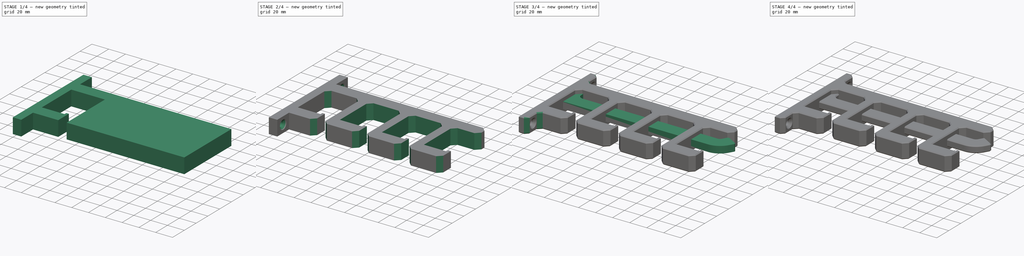
[diagram: build sequence overview — one tinted view per stage of 4, left to right]
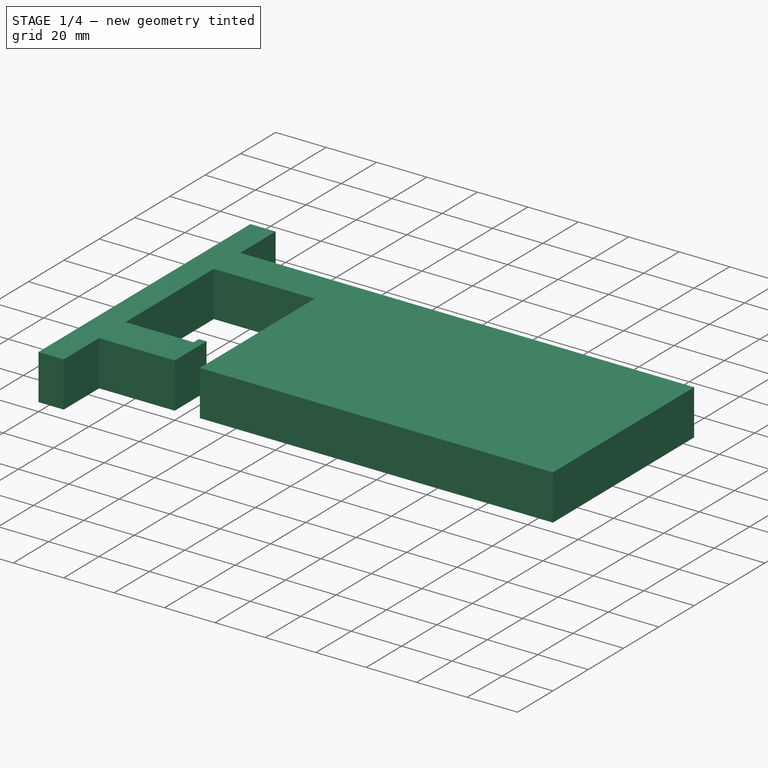
[diagram: stage 1 of 4 — iso view after this stage's code; geometry added in this stage tinted green]
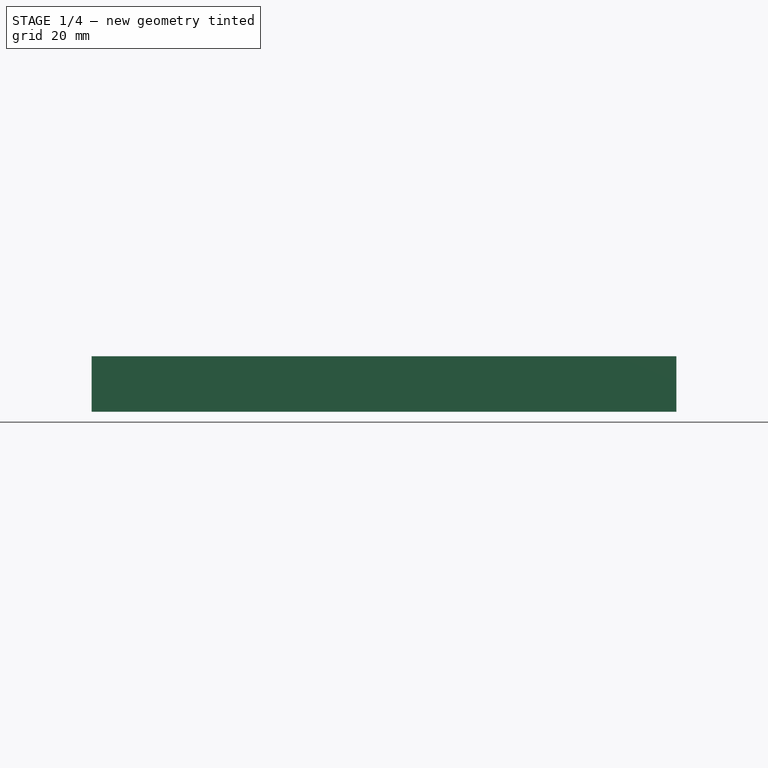
[diagram: stage 1 of 4 — front view after this stage's code; geometry added in this stage tinted green]
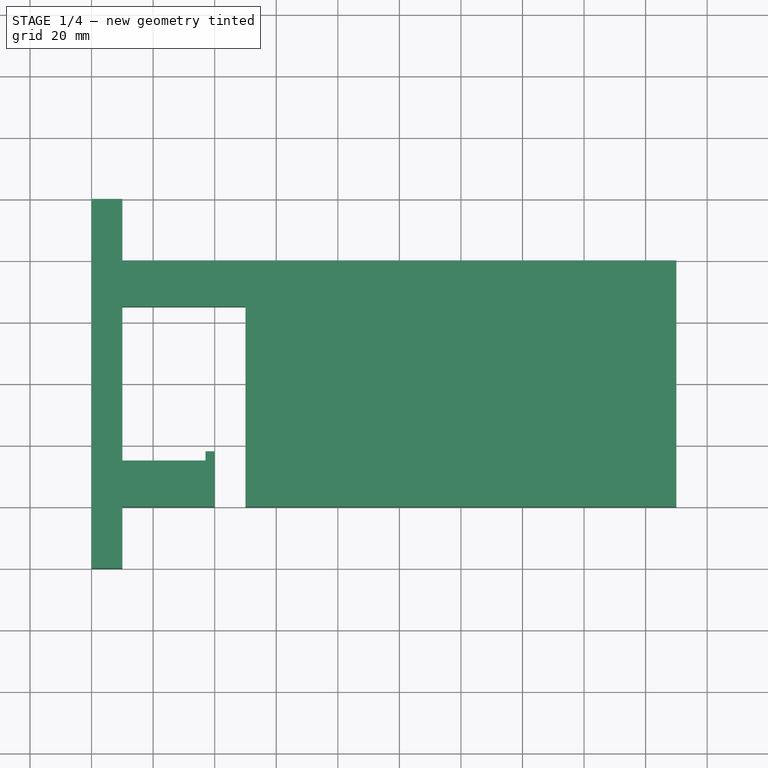
[diagram: stage 1 of 4 — top view after this stage's code; geometry added in this stage tinted green]
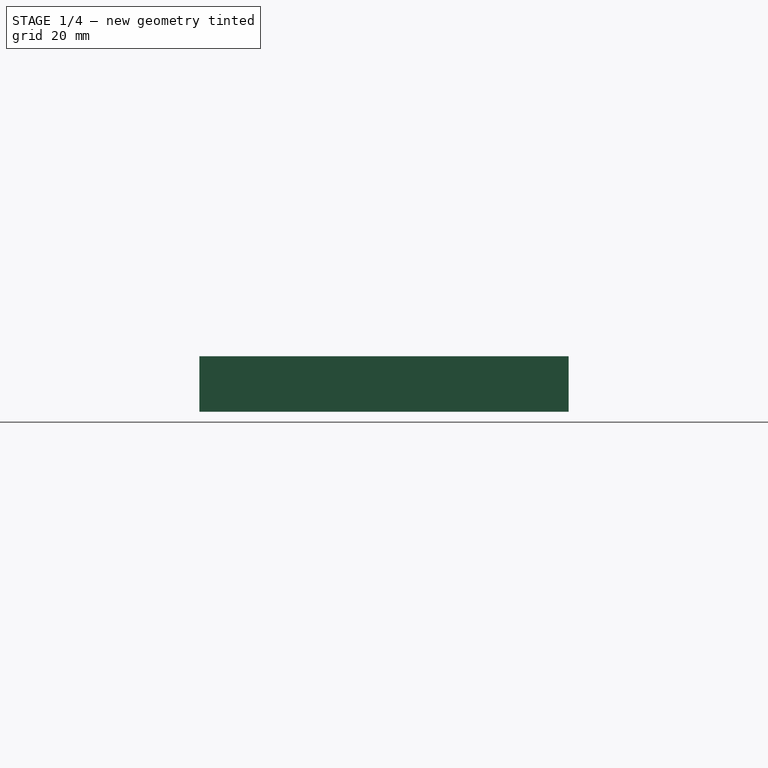
[diagram: stage 1 of 4 — right view after this stage's code; geometry added in this stage tinted green]
FCSTD DOCUMENT  (FreeCAD 0.19R24276 (Git))
Label: cardboard_hanger
License: All rights reserved
LicenseURL: http://en.wikipedia.org/wiki/All_rights_reserved
objects: Sketcher::SketchObject×5, PartDesign::Chamfer×4, PartDesign::Pad×2, PartDesign::Hole×2, PartDesign::Body×2, PartDesign::Pocket×1, PartDesign::LinearPattern×1
note: 26 computed .brp shape members not serialized (recipe doc carries the construction recipe); baked Part::Feature solids carry a one-line shape summary decoded from their .brp

FEATURE [PartDesign::Body] Body
  Group = -> [Sketch,Pad,Sketch001,Hole,Chamfer]
  Origin = -> Origin
  Tip = -> Chamfer
FEATURE [Sketcher::SketchObject] Sketch002
  FullyConstrained = true
  MapMode = 5
  Support = -> [XY_Plane001]
  sketch-geometry (10):
    g0: LineSegment StartX=0 StartY=60 StartZ=0 EndX=10 EndY=60 EndZ=0
    g1: LineSegment StartX=10 StartY=60 StartZ=0 EndX=10 EndY=40 EndZ=0
    g2: LineSegment StartX=10 StartY=40 StartZ=0 EndX=190 EndY=40 EndZ=0
    g3: LineSegment StartX=190 StartY=40 StartZ=0 EndX=190 EndY=-40 EndZ=0
    g4: LineSegment StartX=190 StartY=-40 StartZ=0 EndX=10 EndY=-40 EndZ=0
    g5: LineSegment StartX=10 StartY=-40 StartZ=0 EndX=10 EndY=-60 EndZ=0
    g6: LineSegment StartX=10 StartY=-60 StartZ=0 EndX=0 EndY=-60 EndZ=0
    g7: LineSegment StartX=0 StartY=-60 StartZ=0 EndX=0 EndY=60 EndZ=0
    g8: LineSegment StartX=10 StartY=60 StartZ=0 EndX=0 EndY=0 EndZ=0
    g9: LineSegment StartX=0 StartY=0 StartZ=0 EndX=10 EndY=-60 EndZ=0
  constraints (28):
    c: PointOnObject(g0,g-2)
    c: Horizontal(g0)
    c: Coincident(g0,g1)
    c: Vertical(g1)
    c: Coincident(g1,g2)
    c: Coincident(g2,g3)
    c: Vertical(g3)
    c: Coincident(g3,g4)
    c: Horizontal(g4)
    c: Coincident(g5,g4)
    c: Vertical(g5)
    c: Coincident(g6,g5)
    c: PointOnObject(g6,g-2)
    c: Horizontal(g6)
    c: Coincident(g7,g6)
    c: Coincident(g7,g0)
    c: Equal(g0,g6)
    c: Equal(g5,g1)
    c: Horizontal(g2)
    c: Coincident(g0,g8)
    c: Coincident(g8,g-1)
    c: Coincident(g8,g9)
    c: Coincident(g9,g5)
    c: Equal(g9,g8)
    c: DistanceX(g2,g2) = 180
    c: DistanceX(g0,g0) = 10
    c: DistanceY(g1,g1) = 20
    c: DistanceY(g3,g3) = 80
FEATURE [PartDesign::Pad] Pad001
  Direction = (1,1,1)
  Length = 18
  Length2 = 100
  Midplane = true
  Profile = -> Sketch002
  Type = 0
FEATURE [Sketcher::SketchObject] Sketch003
  AttachmentOffset = pos=(0,0,10) rot=(0,0,1;0rad)
  FullyConstrained = true
  MapMode = 5
  Placement = pos=(0,0,10) rot=(0,0,1;0rad)
  Support = -> [XY_Plane001]
  sketch-geometry (10):
    g0: LineSegment StartX=10 StartY=25 StartZ=0 EndX=10 EndY=-25 EndZ=0
    g1: LineSegment StartX=10 StartY=-25 StartZ=0 EndX=37 EndY=-25 EndZ=0
    g2: LineSegment StartX=37 StartY=-25 StartZ=0 EndX=37 EndY=-22 EndZ=0
    g3: LineSegment StartX=37 StartY=-22 StartZ=0 EndX=40 EndY=-22 EndZ=0
    g4: LineSegment StartX=40 StartY=-22 StartZ=0 EndX=40 EndY=-50 EndZ=0
    g5: LineSegment StartX=40 StartY=-50 StartZ=0 EndX=50 EndY=-50 EndZ=0
    g6: LineSegment StartX=50 StartY=-50 StartZ=0 EndX=50 EndY=25 EndZ=0
    g7: LineSegment StartX=50 StartY=25 StartZ=0 EndX=10 EndY=25 EndZ=0
    g8: LineSegment StartX=0 StartY=0 StartZ=0 EndX=10 EndY=25 EndZ=0
    g9: LineSegment StartX=0 StartY=0 StartZ=0 EndX=10 EndY=-25 EndZ=0
  constraints (28):
    c: Vertical(g0)
    c: Coincident(g0,g1)
    c: Horizontal(g1)
    c: Coincident(g1,g2)
    c: Vertical(g2)
    c: Coincident(g2,g3)
    c: Horizontal(g3)
    c: Coincident(g3,g4)
    c: Vertical(g4)
    c: Coincident(g4,g5)
    c: Horizontal(g5)
    c: Coincident(g5,g6)
    c: Vertical(g6)
    c: Coincident(g6,g7)
    c: Horizontal(g7)
    c: Coincident(g0,g7)
    c: Coincident(g-1,g8)
    c: Coincident(g8,g0)
    c: Coincident(g-1,g9)
    c: Coincident(g9,g0)
    c: DistanceY(g0,g0) = 50
    c: DistanceX(g-1,g0) = 10
    c: Equal(g3,g2)
    c: DistanceX(g3,g3) = 3
    c: DistanceX(g5,g5) = 10
    c: DistanceY(g4,g-1) = 50
    c: DistanceX(g7,g7) = 40
    c: DistanceY(g-1,g0) = 25
FEATURE [PartDesign::Pocket] Pocket
  BaseFeature = -> Pad001
  Length = 5
  Length2 = 100
  Midplane = true
  Profile = -> Sketch003
  Type = 1
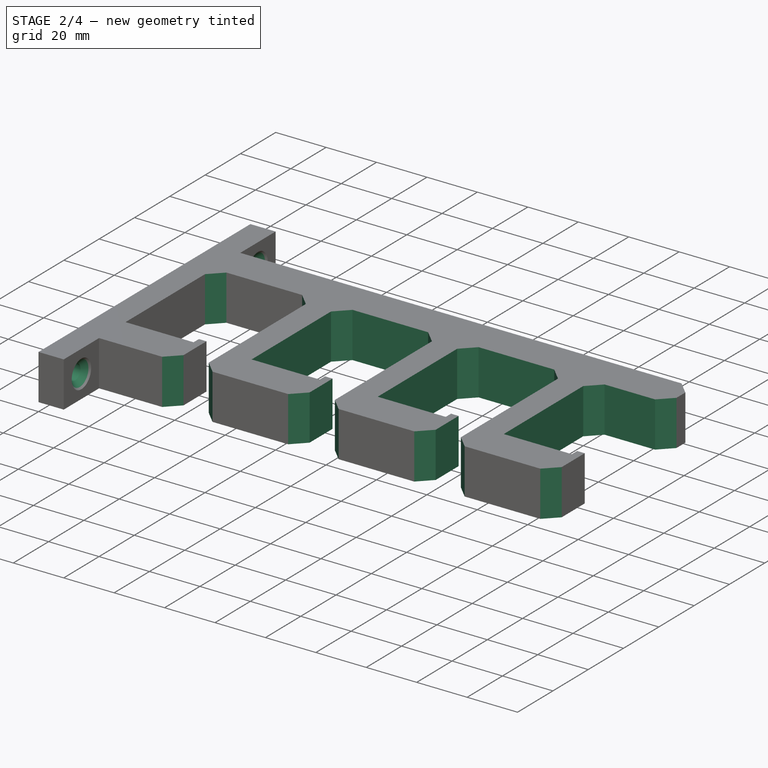
[diagram: stage 2 of 4 — iso view after this stage's code; geometry added in this stage tinted green]
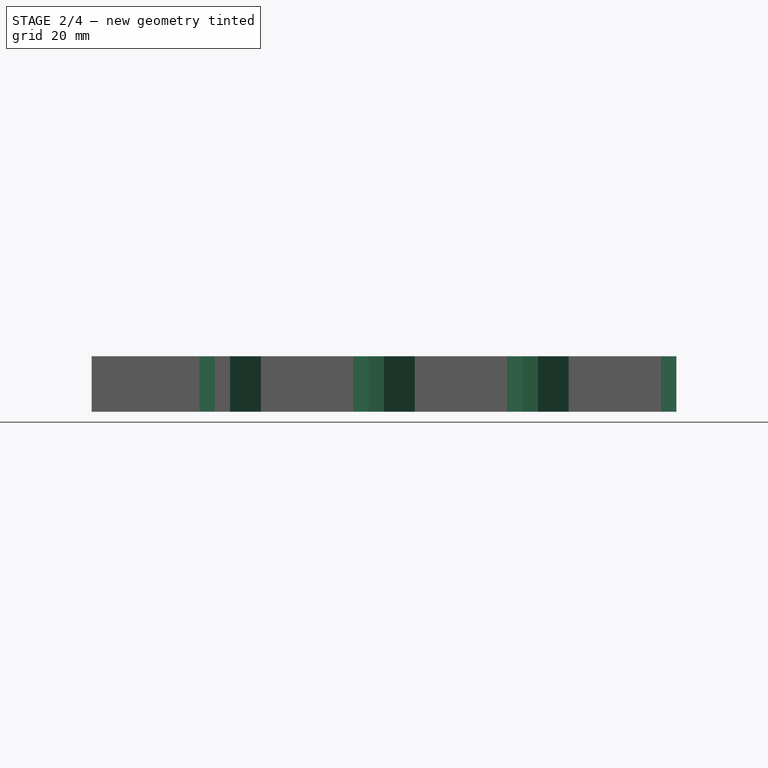
[diagram: stage 2 of 4 — front view after this stage's code; geometry added in this stage tinted green]
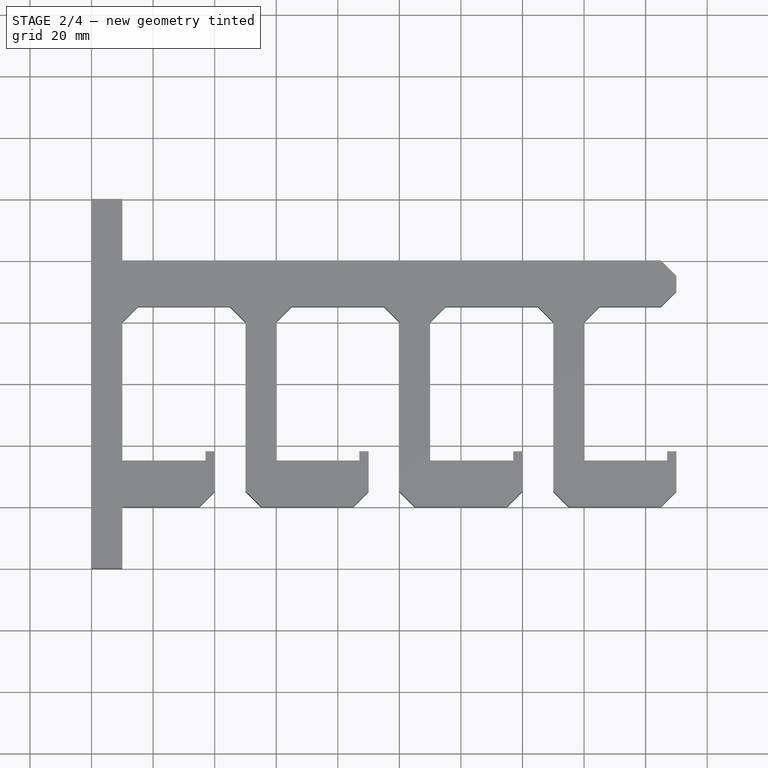
[diagram: stage 2 of 4 — top view after this stage's code; geometry added in this stage tinted green]
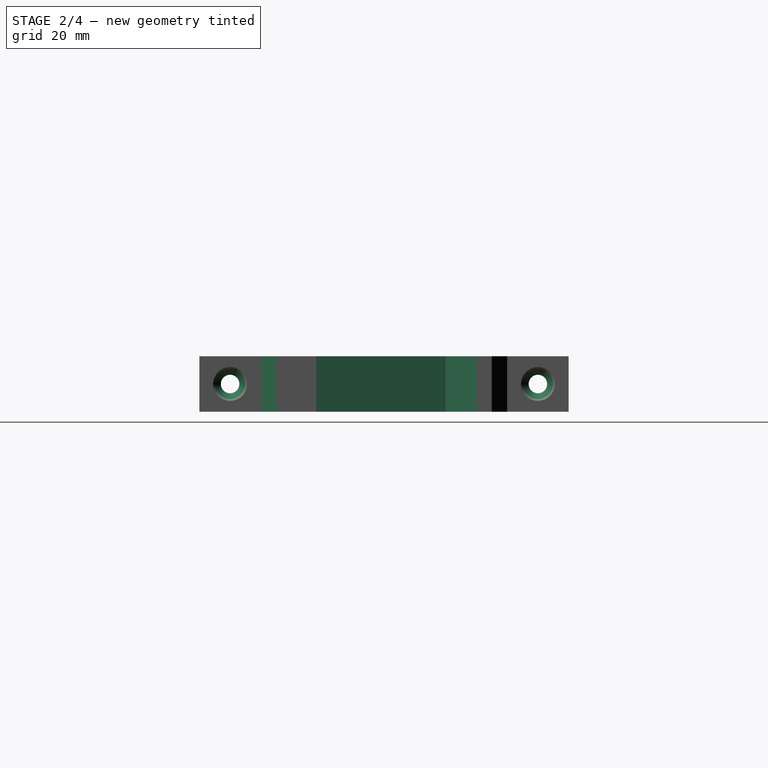
[diagram: stage 2 of 4 — right view after this stage's code; geometry added in this stage tinted green]
FEATURE [PartDesign::LinearPattern] LinearPattern
  BaseFeature = -> Pocket
  Direction = -> Sketch003 [H_Axis]
  Length = 150
  Occurrences = 4
  Originals = -> [Pocket]
FEATURE [Sketcher::SketchObject] Sketch004
  AttachmentOffset = pos=(0,0,10) rot=(0,0,1;0rad)
  FullyConstrained = true
  MapMode = 5
  Placement = pos=(10,-2.2e-15,2.2e-15) rot=(0.57735,0.57735,0.57735;2.0944rad)
  Support = -> [YZ_Plane001]
  sketch-geometry (4):
    g0: LineSegment StartX=-50 StartY=0 StartZ=0 EndX=0 EndY=0 EndZ=0
    g1: LineSegment StartX=0 StartY=0 StartZ=0 EndX=50 EndY=0 EndZ=0
    g2: Circle CenterX=-50 CenterY=0 CenterZ=0 NormalX=0 NormalY=0 NormalZ=1 AngleXU=0 Radius=5
    g3: Circle CenterX=50 CenterY=0 CenterZ=0 NormalX=0 NormalY=0 NormalZ=1 AngleXU=0 Radius=5
  constraints (10):
    c: Coincident(g0,g-1)
    c: Coincident(g0,g1)
    c: Coincident(g2,g0)
    c: Coincident(g3,g1)
    c: Diameter(g3) = 10
    c: Equal(g3,g2)
    c: Equal(g1,g0)
    c: PointOnObject(g2,g-1)
    c: PointOnObject(g3,g-1)
    c: DistanceX(g2,g3) = 100
FEATURE [PartDesign::Hole] Hole001
  BaseFeature = -> LinearPattern
  Depth = 25
  DepthType = 1
  Diameter = 6
  DrillForDepth = false
  DrillPoint = 1
  DrillPointAngle = 118
  HoleCutCountersinkAngle = 90
  HoleCutCustomValues = false
  HoleCutDepth = 2
  HoleCutDiameter = 11
  HoleCutType = 2
  ModelActualThread = false
  Profile = -> Sketch004
  Tapered = false
  TaperedAngle = 90
  ThreadAngle = 0
  ThreadClass = 0
  ThreadCutOffInner = 0
  ThreadCutOffOuter = 0
  ThreadDirection = 0
  ThreadFit = 0
  ThreadPitch = 0
  ThreadSize = 0
  ThreadType = 0
  Threaded = false
FEATURE [PartDesign::Chamfer] Chamfer001
  Angle = 45
  Base = -> Hole001 [Edge92,Edge100,Edge108,Edge116,Edge97,Edge105,Edge113,Edge121,Edge98,Edge106,Edge114,Edge99,Edge107,Edge115,Edge122,Edge89]
  BaseFeature = -> Hole001
  ChamferType = 0
  FlipDirection = false
  Size = 5
  Size2 = 1
  SupportTransform = false
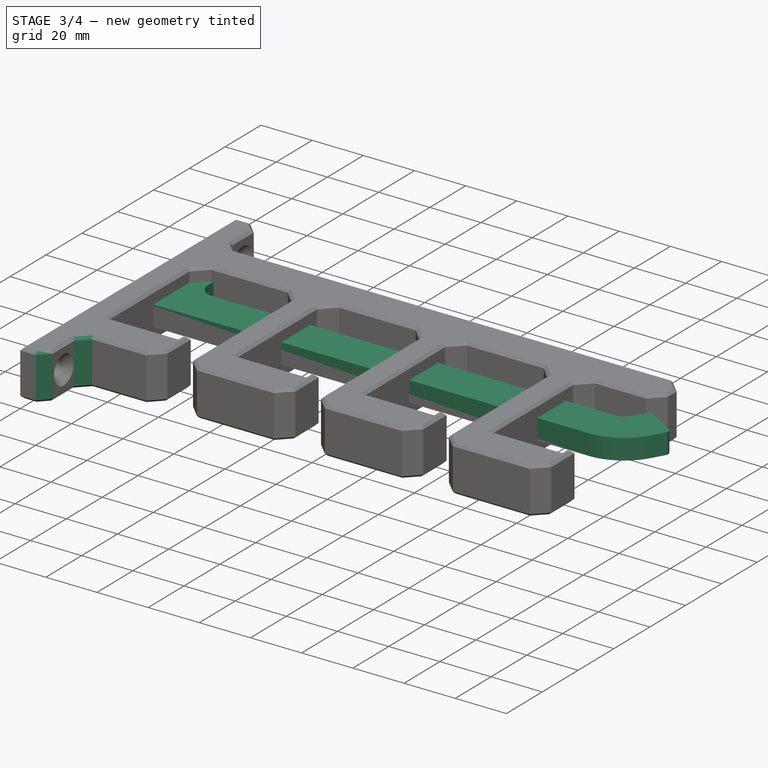
[diagram: stage 3 of 4 — iso view after this stage's code; geometry added in this stage tinted green]
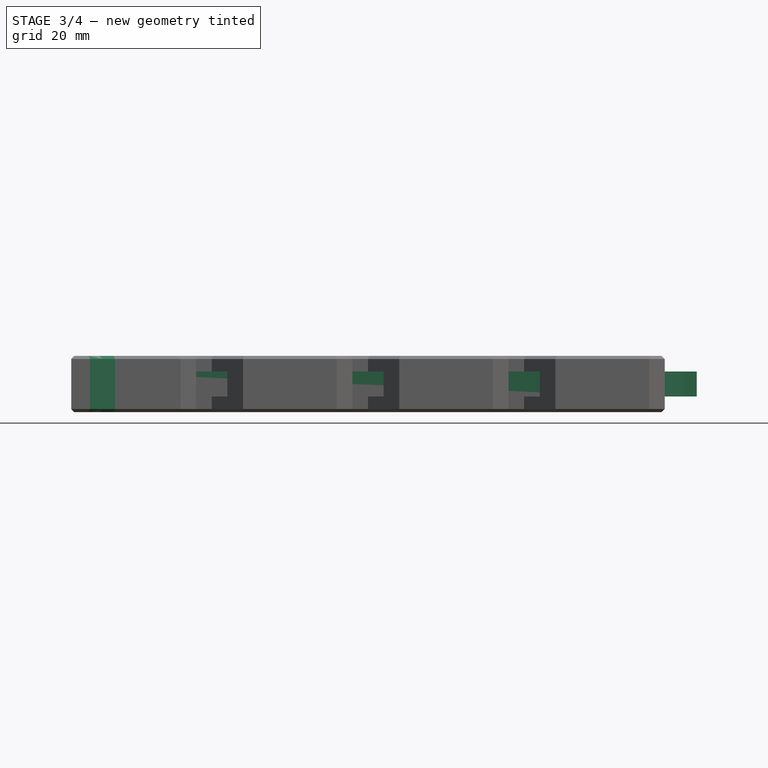
[diagram: stage 3 of 4 — front view after this stage's code; geometry added in this stage tinted green]
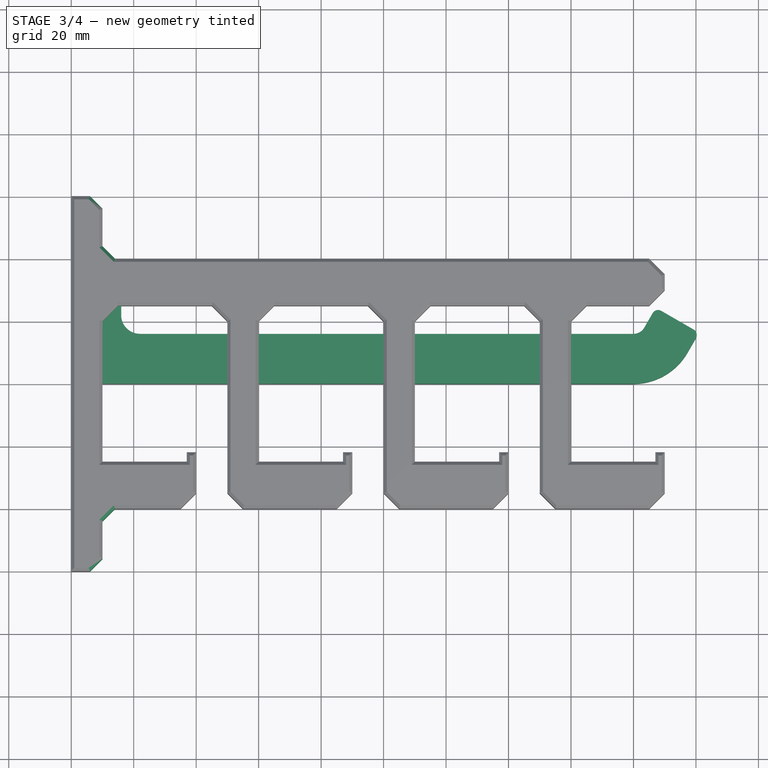
[diagram: stage 3 of 4 — top view after this stage's code; geometry added in this stage tinted green]
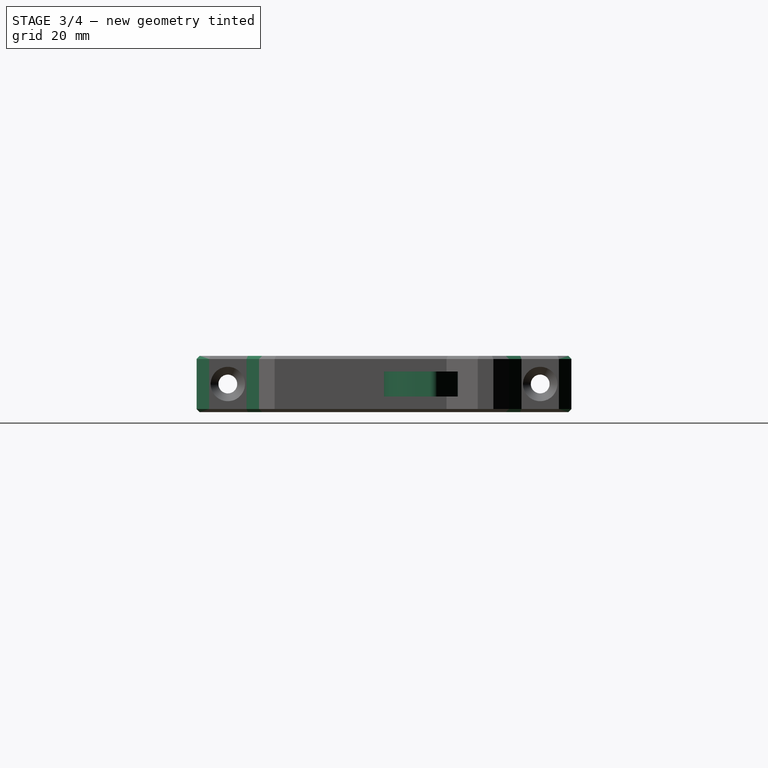
[diagram: stage 3 of 4 — right view after this stage's code; geometry added in this stage tinted green]
FEATURE [Sketcher::SketchObject] Sketch
  FullyConstrained = true
  MapMode = 5
  Support = -> [XY_Plane]
  sketch-geometry (16):
    g0: LineSegment StartX=0 StartY=0 StartZ=0 EndX=180 EndY=0 EndZ=0
    g1: LineSegment StartX=197.321 StartY=10 StartZ=0 EndX=200 EndY=14.641 EndZ=0
    g2: LineSegment StartX=22 StartY=16 StartZ=0 EndX=180 EndY=16 EndZ=0
    g3: LineSegment StartX=183.464 StartY=18 StartZ=0 EndX=186.144 EndY=22.641 EndZ=0
    g4: LineSegment StartX=16 StartY=22 StartZ=0 EndX=16 EndY=36 EndZ=0
    g5: LineSegment StartX=0 StartY=0 StartZ=0 EndX=0 EndY=40 EndZ=0
    g6: LineSegment StartX=0 StartY=40 StartZ=0 EndX=12 EndY=40 EndZ=0
    g7: LineSegment StartX=22 StartY=16 StartZ=0 EndX=22 EndY=0 EndZ=0
    g8: ArcOfCircle CenterX=22 CenterY=22 CenterZ=0 NormalX=0 NormalY=0 NormalZ=1 AngleXU=0 Radius=6 StartAngle=3.14159 EndAngle=4.71239
    g9: ArcOfCircle CenterX=180 CenterY=20 CenterZ=0 NormalX=0 NormalY=0 NormalZ=1 AngleXU=0 Radius=4 StartAngle=4.71239 EndAngle=5.75959
    g10: ArcOfCircle CenterX=180 CenterY=20 CenterZ=0 NormalX=0 NormalY=0 NormalZ=1 AngleXU=0 Radius=20 StartAngle=4.71239 EndAngle=5.75959
    g11: LineSegment StartX=188.876 StartY=23.3731 StartZ=0 EndX=199.268 EndY=17.3731 EndZ=0
    g12: ArcOfCircle CenterX=198.268 CenterY=15.641 CenterZ=0 NormalX=0 NormalY=0 NormalZ=1 AngleXU=0 Radius=2 StartAngle=5.75959 EndAngle=7.33038
    g13: ArcOfCircle CenterX=187.876 CenterY=21.641 CenterZ=0 NormalX=0 NormalY=0 NormalZ=1 AngleXU=0 Radius=2 StartAngle=1.0472 EndAngle=2.61799
    g14: ArcOfCircle CenterX=12 CenterY=36 CenterZ=0 NormalX=0 NormalY=0 NormalZ=1 AngleXU=0 Radius=4 StartAngle=6.2213e-12 EndAngle=1.5708
    g15: LineSegment StartX=16 StartY=22 StartZ=0 EndX=0 EndY=22 EndZ=0
  constraints (40):
    c: Coincident(g-1,g0)
    c: Horizontal(g2)
    c: Vertical(g4)
    c: Coincident(g0,g5)
    c: Coincident(g5,g6)
    c: Horizontal(g6)
    c: PointOnObject(g5,g-2)
    c: PointOnObject(g7,g0)
    c: Vertical(g7)
    c: Tangent(g2,g8) = -1.5708
    c: Tangent(g4,g8) = 1.5708
    c: Tangent(g2,g9) = -1.5708
    c: Tangent(g3,g9) = -1.5708
    c: Coincident(g7,g2)
    c: Tangent(g0,g10) = -1.5708
    c: Tangent(g1,g10) = -1.5708
    c: Coincident(g10,g9)
    c: PointOnObject(g0,g-1)
    c: DistanceY(g5,g5) = 40
    c: Parallel(g1,g3)
    c: Perpendicular(g3,g11)
    c: Angle(g1,g-1) = 2.0944
    c: Tangent(g1,g12) = -1.5708
    c: Tangent(g11,g12) = 1.5708
    c: Tangent(g3,g13) = 1.5708
    c: Tangent(g11,g13) = 1.5708
    c: Radius(g12) = 2
    c: Tangent(g4,g14) = -1.5708
    c: Tangent(g6,g14) = 1.5708
    c: DistanceX(g5,g4) = 16
    c: DistanceX(g0,g0) = 180
    c: Coincident(g15,g4)
    c: PointOnObject(g15,g5)
    c: Horizontal(g15)
    c: Radius(g8) = 6
    c: Equal(g12,g13)
    c: DistanceX(g0,g1) = 20
    c: Radius(g14) = 4
    c: DistanceY(g7,g7) = 16
    c: Radius(g9) = 4
FEATURE [PartDesign::Pad] Pad
  Direction = (1,1,1)
  Length = 8
  Length2 = 100
  Midplane = true
  Profile = -> Sketch
  Type = 0
FEATURE [PartDesign::Chamfer] Chamfer002
  Angle = 45
  Base = -> Chamfer001 [Edge80,Edge56,Edge75,Edge61]
  BaseFeature = -> Chamfer001
  ChamferType = 0
  FlipDirection = false
  Size = 4
  Size2 = 1
  SupportTransform = false
FEATURE [PartDesign::Chamfer] Chamfer003
  Angle = 45
  Base = -> Chamfer002 [Face60,Face1]
  BaseFeature = -> Chamfer002
  ChamferType = 0
  FlipDirection = false
  Size = 1
  Size2 = 1
  SupportTransform = false
FEATURE [PartDesign::Body] Body001
  Group = -> [Sketch002,Pad001,Sketch003,Pocket,LinearPattern,Sketch004,Hole001,Chamfer001,Chamfer002,Chamfer003]
  Origin = -> Origin001
  Tip = -> Chamfer003
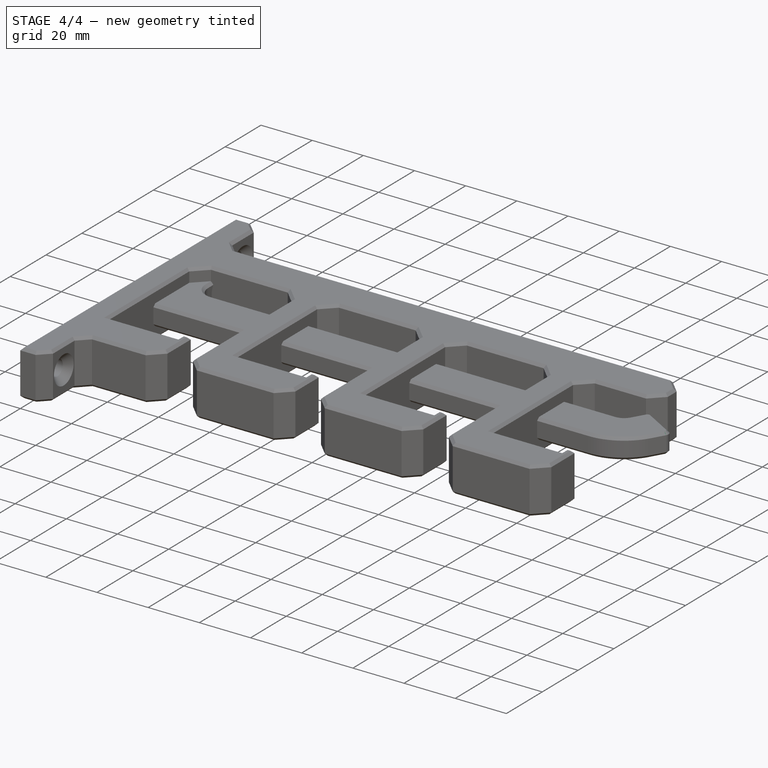
[diagram: stage 4 of 4 — iso view after this stage's code; geometry added in this stage tinted green]
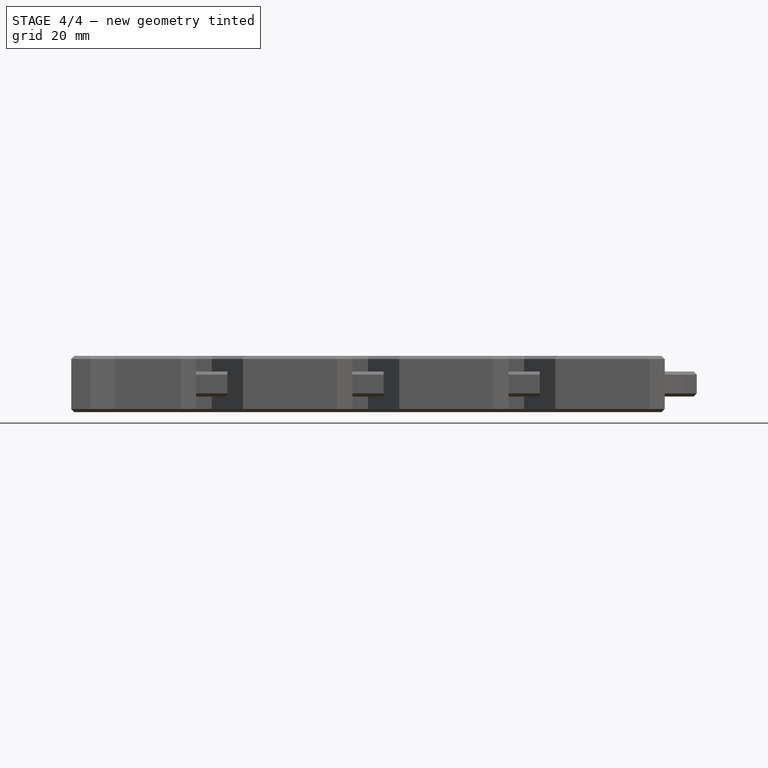
[diagram: stage 4 of 4 — front view after this stage's code; geometry added in this stage tinted green]
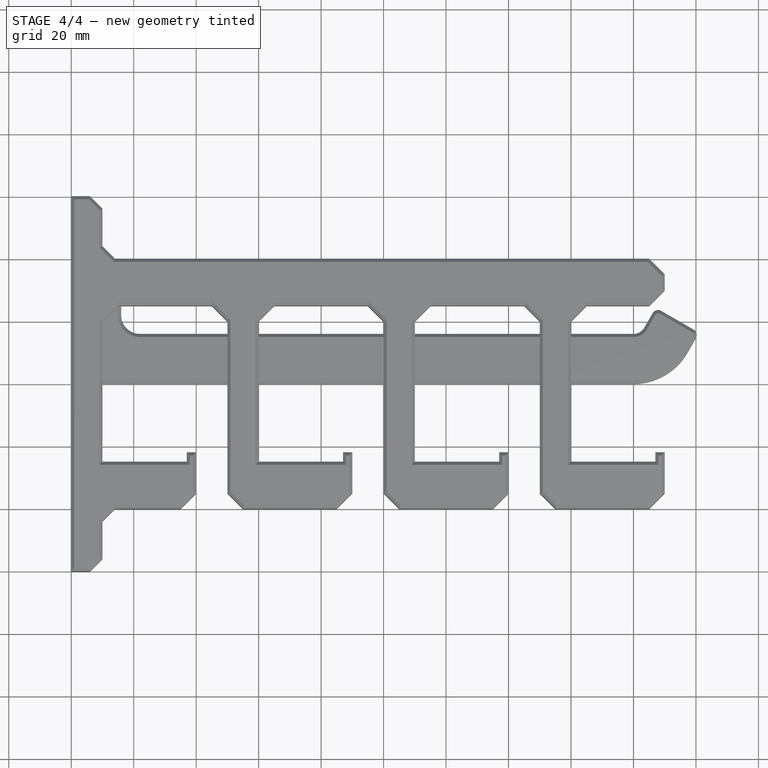
[diagram: stage 4 of 4 — top view after this stage's code; geometry added in this stage tinted green]
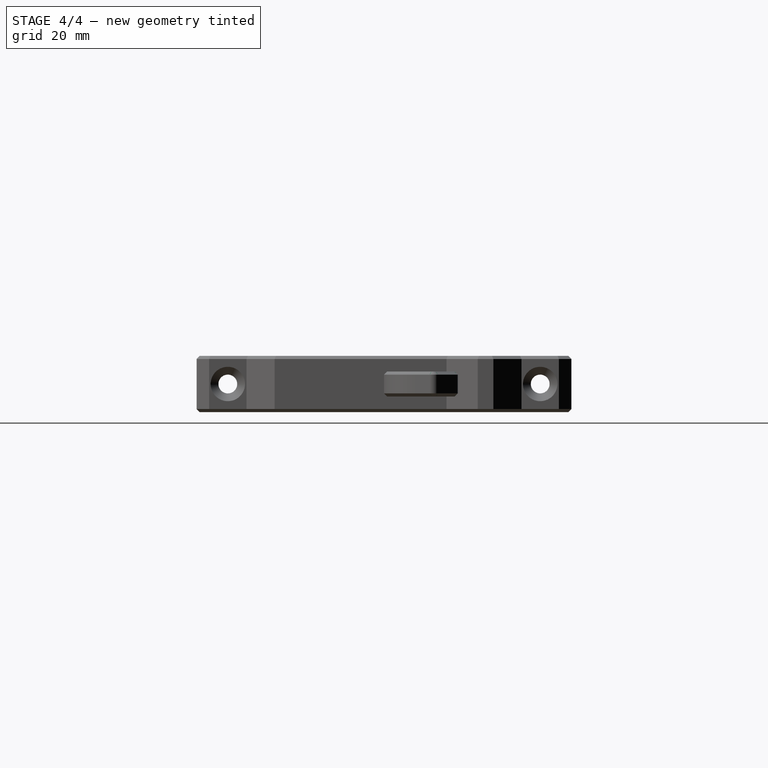
[diagram: stage 4 of 4 — right view after this stage's code; geometry added in this stage tinted green]
FEATURE [Sketcher::SketchObject] Sketch001
  AttachmentOffset = pos=(0,0,16) rot=(0,0,1;0rad)
  FullyConstrained = true
  MapMode = 5
  Placement = pos=(16,-3.6e-15,3.6e-15) rot=(0.57735,0.57735,0.57735;2.0944rad)
  Support = -> [YZ_Plane]
  sketch-geometry (1):
    g0: Circle CenterX=30 CenterY=0 CenterZ=0 NormalX=0 NormalY=0 NormalZ=1 AngleXU=0 Radius=10
  constraints (3):
    c: PointOnObject(g0,g-1)
    c: DistanceX(g-1,g0) = 30
    c: Radius(g0) = 10
FEATURE [PartDesign::Hole] Hole
  BaseFeature = -> Pad
  Depth = 25
  DepthType = 1
  Diameter = 5.5
  DrillForDepth = false
  DrillPoint = 1
  DrillPointAngle = 118
  HoleCutCountersinkAngle = 90
  HoleCutCustomValues = false
  HoleCutDepth = 6
  HoleCutDiameter = 12
  HoleCutType = 2
  ModelActualThread = false
  Profile = -> Sketch001
  Tapered = false
  TaperedAngle = 90
  ThreadAngle = 0
  ThreadClass = 0
  ThreadCutOffInner = 0
  ThreadCutOffOuter = 0
  ThreadDirection = 0
  ThreadFit = 0
  ThreadPitch = 0
  ThreadSize = 0
  ThreadType = 0
  Threaded = false
FEATURE [PartDesign::Chamfer] Chamfer
  Angle = 45
  Base = -> Hole [Face4,Face3]
  BaseFeature = -> Hole
  ChamferType = 0
  FlipDirection = false
  Size = 1
  Size2 = 1
  SupportTransform = false
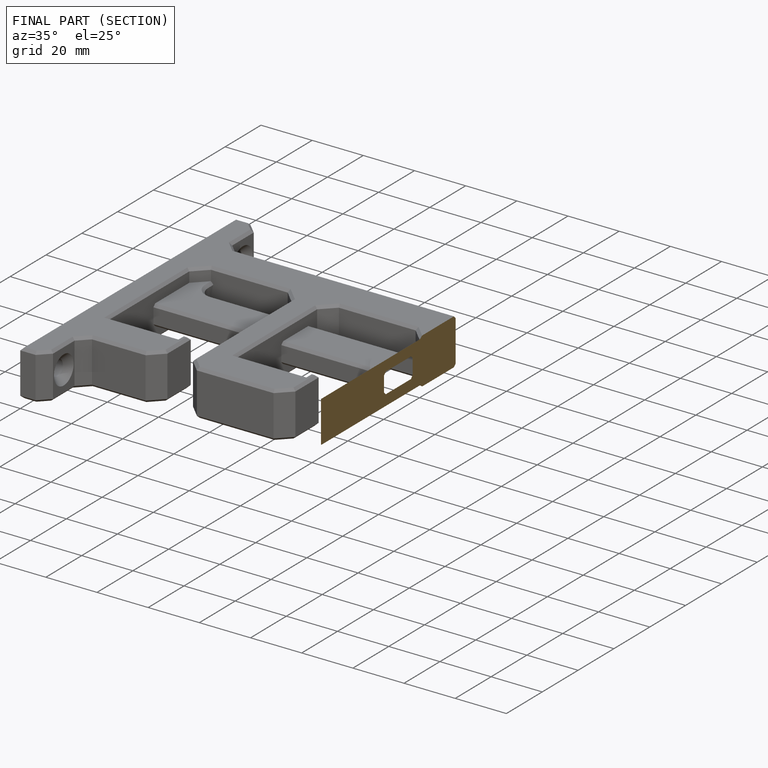
[diagram: finished part — half-section view (interior)]
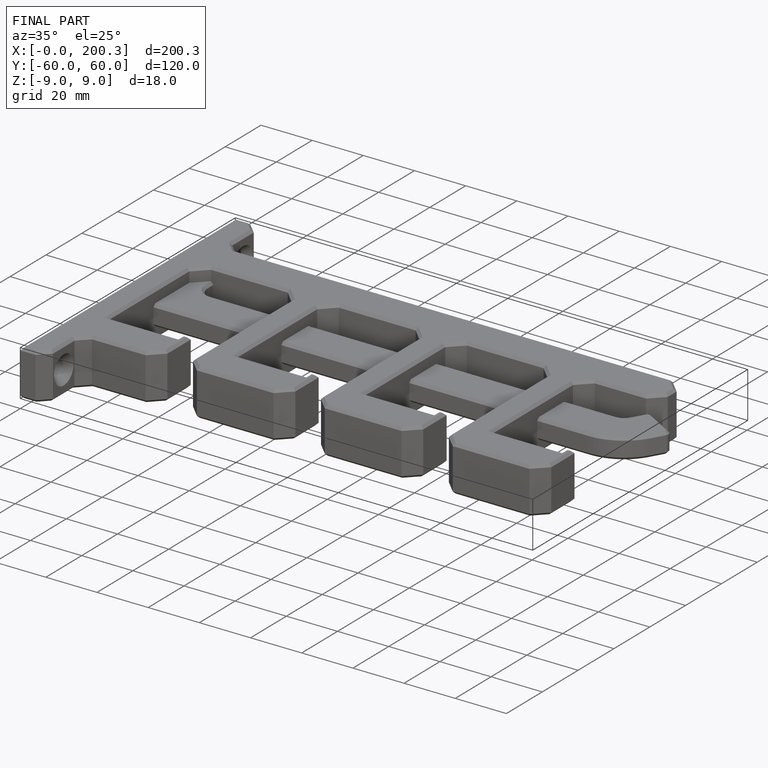
[diagram: finished part — iso view with bounding-box wireframe]
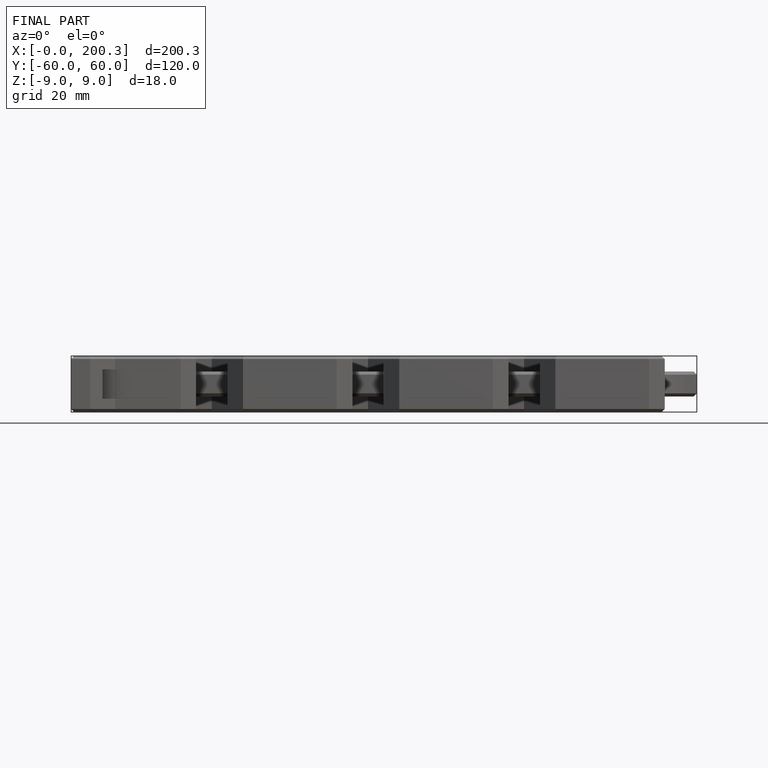
[diagram: finished part — front view with bounding-box wireframe]
